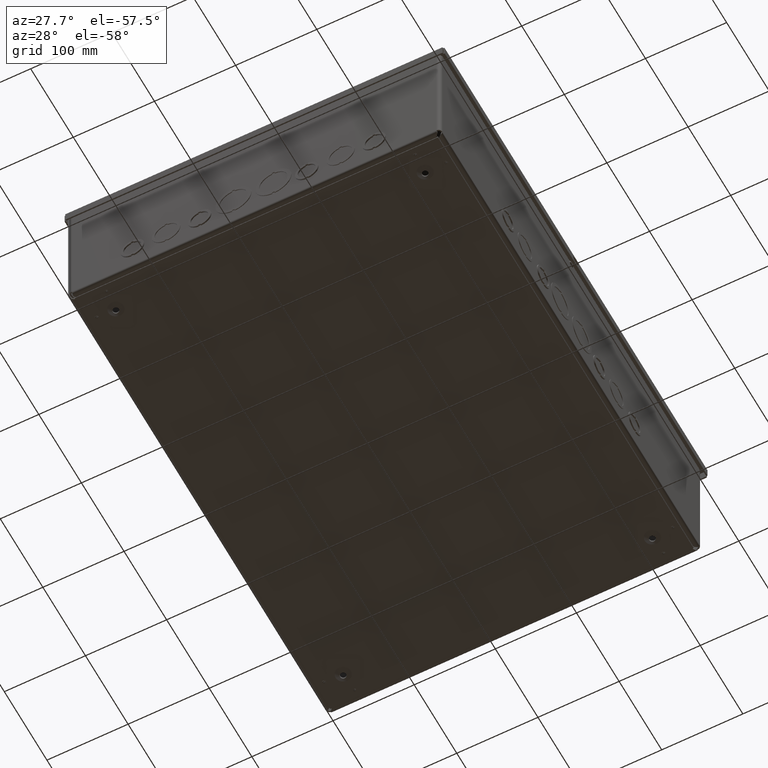
[diagram: clean part render]
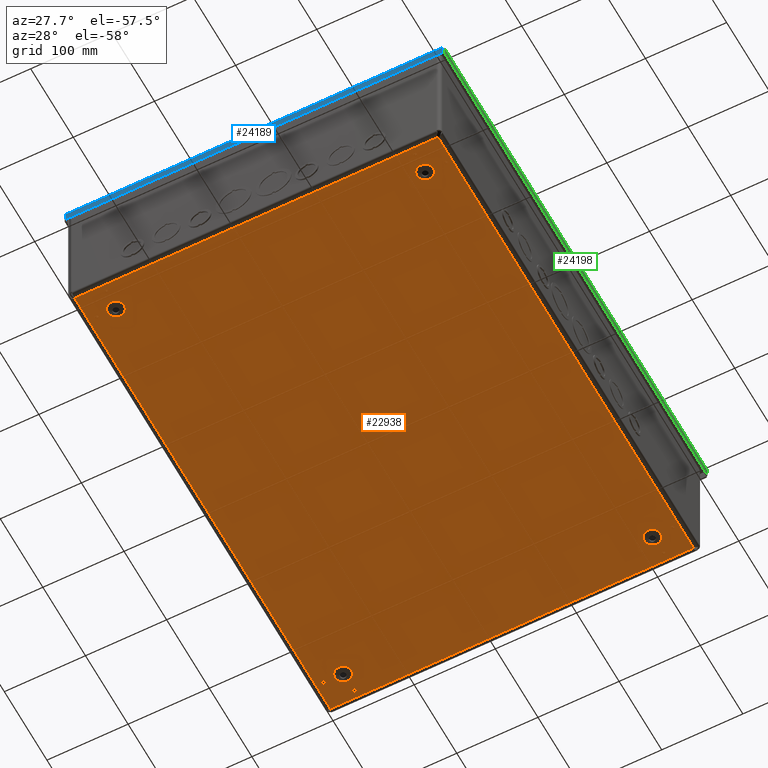
[diagram: same view with three faces highlighted in distinct colors, each labeled with its STEP entity id]
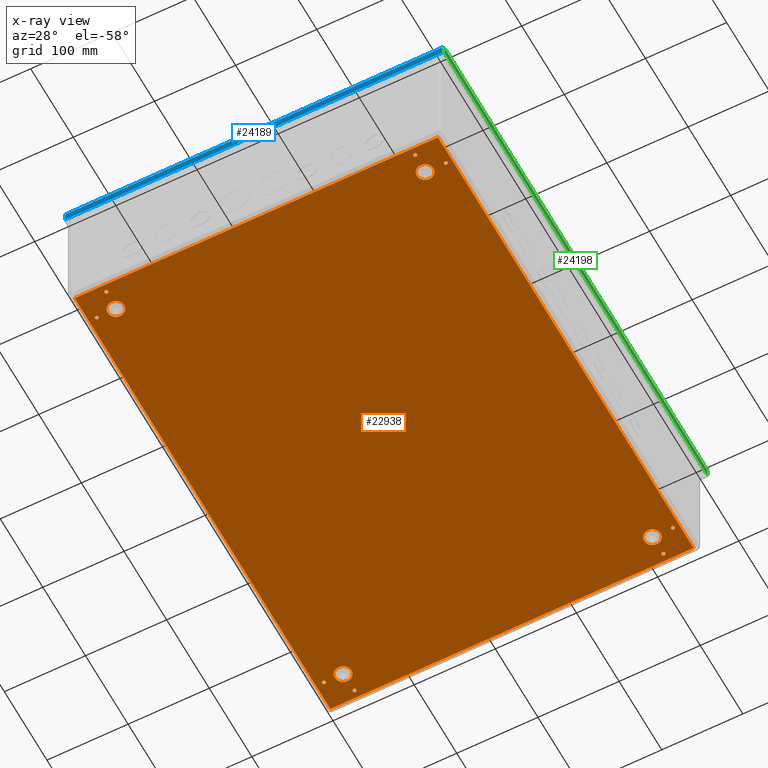
[diagram: x-ray of the same camera — body ghosted, the three highlighted faces saturated]
A machine part, auxiliary view with three faces highlighted in distinct colors.
The next image is the same camera in x-ray (body ghosted, the three faces saturated) — at least one of them is partly hidden behind the body in this view.
Their STEP definitions:

[orange] entity #22938 — the highlighted planar face has unit normal (0, 0, -1).
#304=LINE($,#32348,#2684);
#305=LINE($,#32350,#2685);
#306=LINE($,#32352,#2686);
#307=LINE($,#32353,#2687);
#2684=VECTOR($,#26274,23.625);
#2685=VECTOR($,#26275,17.625);
#2686=VECTOR($,#26276,23.625);
#2687=VECTOR($,#26277,17.625);
#5437=FACE_BOUND($,#7053,.T.);
#5438=FACE_BOUND($,#7054,.T.);
#5439=FACE_BOUND($,#7055,.T.);
#5440=FACE_BOUND($,#7056,.T.);
#5441=FACE_BOUND($,#7057,.T.);
#5442=FACE_BOUND($,#7058,.T.);
#5443=FACE_BOUND($,#7059,.T.);
#5444=FACE_BOUND($,#7060,.T.);
#5445=FACE_BOUND($,#7061,.T.);
#5446=FACE_BOUND($,#7062,.T.);
#5447=FACE_BOUND($,#7063,.T.);
#5448=FACE_BOUND($,#7064,.T.);
#5449=FACE_BOUND($,#7065,.T.);
#7053=EDGE_LOOP($,(#14243));
#7054=EDGE_LOOP($,(#14244));
#7055=EDGE_LOOP($,(#14245));
#7056=EDGE_LOOP($,(#14246));
#7057=EDGE_LOOP($,(#14247));
#7058=EDGE_LOOP($,(#14248));
#7059=EDGE_LOOP($,(#14249));
#7060=EDGE_LOOP($,(#14250));
#7061=EDGE_LOOP($,(#14251));
#7062=EDGE_LOOP($,(#14252));
#7063=EDGE_LOOP($,(#14253,#14254,#14255,#14256));
#7064=EDGE_LOOP($,(#14257));
#7065=EDGE_LOOP($,(#14258));
#8542=CIRCLE($,#24266,0.0898817580215499);
#8545=CIRCLE($,#24273,0.0898817580215499);
#8548=CIRCLE($,#24280,0.0898817580215491);
#8551=CIRCLE($,#24287,0.0898817580215491);
#8554=CIRCLE($,#24294,0.0898817580215491);
#8557=CIRCLE($,#24301,0.0898817580215491);
#8560=CIRCLE($,#24308,0.0898817580215499);
#8563=CIRCLE($,#24315,0.0898817580215499);
#8568=CIRCLE($,#24326,0.402000000000002);
#8569=CIRCLE($,#24329,0.402);
#8570=CIRCLE($,#24330,0.402);
#8571=CIRCLE($,#24331,0.402000000000002);
#9097=VERTEX_POINT($,#32252);
#9100=VERTEX_POINT($,#32262);
#9103=VERTEX_POINT($,#32272);
#9106=VERTEX_POINT($,#32282);
#9109=VERTEX_POINT($,#32292);
#9112=VERTEX_POINT($,#32302);
#9115=VERTEX_POINT($,#32312);
#9118=VERTEX_POINT($,#32322);
#9123=VERTEX_POINT($,#32338);
#9124=VERTEX_POINT($,#32342);
#9125=VERTEX_POINT($,#32344);
#9126=VERTEX_POINT($,#32346);
#9127=VERTEX_POINT($,#32347);
#9128=VERTEX_POINT($,#32349);
#9129=VERTEX_POINT($,#32351);
#9130=VERTEX_POINT($,#32354);
#11076=EDGE_CURVE($,#9097,#9097,#8542,.T.);
#11079=EDGE_CURVE($,#9100,#9100,#8545,.T.);
#11082=EDGE_CURVE($,#9103,#9103,#8548,.T.);
#11085=EDGE_CURVE($,#9106,#9106,#8551,.T.);
#11088=EDGE_CURVE($,#9109,#9109,#8554,.T.);
#11091=EDGE_CURVE($,#9112,#9112,#8557,.T.);
#11094=EDGE_CURVE($,#9115,#9115,#8560,.T.);
#11097=EDGE_CURVE($,#9118,#9118,#8563,.T.);
#11102=EDGE_CURVE($,#9123,#9123,#8568,.T.);
#11103=EDGE_CURVE($,#9124,#9124,#8569,.T.);
#11104=EDGE_CURVE($,#9125,#9125,#8570,.T.);
#11105=EDGE_CURVE($,#9126,#9127,#304,.T.);
#11106=EDGE_CURVE($,#9128,#9126,#305,.T.);
#11107=EDGE_CURVE($,#9129,#9128,#306,.T.);
#11108=EDGE_CURVE($,#9127,#9129,#307,.T.);
#11109=EDGE_CURVE($,#9130,#9130,#8571,.T.);
#14243=ORIENTED_EDGE($,*,*,#11076,.T.);
#14244=ORIENTED_EDGE($,*,*,#11079,.T.);
#14245=ORIENTED_EDGE($,*,*,#11082,.T.);
#14246=ORIENTED_EDGE($,*,*,#11085,.T.);
#14247=ORIENTED_EDGE($,*,*,#11088,.T.);
#14248=ORIENTED_EDGE($,*,*,#11091,.T.);
#14249=ORIENTED_EDGE($,*,*,#11094,.T.);
#14250=ORIENTED_EDGE($,*,*,#11097,.T.);
#14251=ORIENTED_EDGE($,*,*,#11103,.T.);
#14252=ORIENTED_EDGE($,*,*,#11104,.T.);
#14253=ORIENTED_EDGE($,*,*,#11105,.F.);
#14254=ORIENTED_EDGE($,*,*,#11106,.F.);
#14255=ORIENTED_EDGE($,*,*,#11107,.F.);
#14256=ORIENTED_EDGE($,*,*,#11108,.F.);
#14257=ORIENTED_EDGE($,*,*,#11109,.T.);
#14258=ORIENTED_EDGE($,*,*,#11102,.T.);
#20730=PLANE($,#24328);
#22938=ADVANCED_FACE($,(#5437,#5438,#5439,#5440,#5441,#5442,#5443,#5444,
#5445,#5446,#5447,#5448,#5449),#20730,.T.);
#24266=AXIS2_PLACEMENT_3D($,#32253,#26144,#26145);
#24273=AXIS2_PLACEMENT_3D($,#32263,#26158,#26159);
#24280=AXIS2_PLACEMENT_3D($,#32273,#26172,#26173);
#24287=AXIS2_PLACEMENT_3D($,#32283,#26186,#26187);
#24294=AXIS2_PLACEMENT_3D($,#32293,#26200,#26201);
#24301=AXIS2_PLACEMENT_3D($,#32303,#26214,#26215);
#24308=AXIS2_PLACEMENT_3D($,#32313,#26228,#26229);
#24315=AXIS2_PLACEMENT_3D($,#32323,#26242,#26243);
#24326=AXIS2_PLACEMENT_3D($,#32339,#26264,#26265);
#24328=AXIS2_PLACEMENT_3D($,#32341,#26268,#26269);
#24329=AXIS2_PLACEMENT_3D($,#32343,#26270,#26271);
#24330=AXIS2_PLACEMENT_3D($,#32345,#26272,#26273);
#24331=AXIS2_PLACEMENT_3D($,#32355,#26278,#26279);
#26144=DIRECTION('center_axis',(0.,0.,-1.));
#26145=DIRECTION('ref_axis',(-1.,6.00679994895151E-017,0.));
#26158=DIRECTION('center_axis',(0.,0.,-1.));
#26159=DIRECTION('ref_axis',(-1.,6.00679994895151E-017,0.));
#26172=DIRECTION('center_axis',(0.,0.,-1.));
#26173=DIRECTION('ref_axis',(-1.,6.00679994895162E-017,0.));
#26186=DIRECTION('center_axis',(0.,0.,-1.));
#26187=DIRECTION('ref_axis',(-1.,6.00679994895162E-017,0.));
#26200=DIRECTION('center_axis',(0.,0.,-1.));
#26201=DIRECTION('ref_axis',(-1.,6.00679994895162E-017,0.));
#26214=DIRECTION('center_axis',(0.,0.,-1.));
#26215=DIRECTION('ref_axis',(-1.,6.00679994895162E-017,0.));
#26228=DIRECTION('center_axis',(0.,0.,-1.));
#26229=DIRECTION('ref_axis',(-1.,6.00679994895151E-017,0.));
#26242=DIRECTION('center_axis',(0.,0.,-1.));
#26243=DIRECTION('ref_axis',(-1.,6.00679994895151E-017,0.));
#26264=DIRECTION('center_axis',(0.,0.,-1.));
#26265=DIRECTION('ref_axis',(-1.,-4.78144776769422E-016,-1.52679466533815E-016));
#26268=DIRECTION('center_axis',(0.,0.,1.));
#26269=DIRECTION('ref_axis',(1.,0.,0.));
#26270=DIRECTION('center_axis',(0.,0.,-1.));
#26271=DIRECTION('ref_axis',(-1.,-4.78144776769421E-016,-1.52679466533815E-016));
#26272=DIRECTION('center_axis',(0.,0.,-1.));
#26273=DIRECTION('ref_axis',(-1.,-1.48693002970667E-018,-1.52679466533815E-016));
#26274=DIRECTION($,(-3.06161699786838E-016,1.,0.));
#26275=DIRECTION($,(-1.,0.,0.));
#26276=DIRECTION($,(2.36817976339658E-016,-1.,0.));
#26277=DIRECTION($,(1.,1.58718430951047E-016,0.));
#26278=DIRECTION('center_axis',(0.,0.,-1.));
#26279=DIRECTION('ref_axis',(-1.,-1.48693002970667E-018,-1.52679466533815E-016));
#32252=CARTESIAN_POINT('',(0.469890453414107,1.32,0.0740000000000006));
#32253=CARTESIAN_POINT('Origin',(0.380008695392557,1.32,0.0740000000000006));
#32262=CARTESIAN_POINT('',(1.44489045341411,0.345,0.0740000000000007));
#32263=CARTESIAN_POINT('Origin',(1.35500869539256,0.345,0.0740000000000007));
#32272=CARTESIAN_POINT('',(16.4298904534141,0.345,0.0740000000000007));
#32273=CARTESIAN_POINT('Origin',(16.3400086953926,0.345,0.0740000000000007));
#32282=CARTESIAN_POINT('',(17.4048904534141,1.32,0.0740000000000006));
#32283=CARTESIAN_POINT('Origin',(17.3150086953925,1.32,0.0740000000000006));
#32292=CARTESIAN_POINT('',(17.4048904534141,22.305,0.0739999999999993));
#32293=CARTESIAN_POINT('Origin',(17.3150086953925,22.305,0.0739999999999993));
#32302=CARTESIAN_POINT('',(16.4298904534141,23.275,0.0739999999999993));
#32303=CARTESIAN_POINT('Origin',(16.3400086953926,23.275,0.0739999999999993));
#32312=CARTESIAN_POINT('',(0.469890453414102,22.305,0.0739999999999993));
#32313=CARTESIAN_POINT('Origin',(0.380008695392552,22.305,0.0739999999999993));
#32322=CARTESIAN_POINT('',(1.4448904534141,23.275,0.0739999999999993));
#32323=CARTESIAN_POINT('Origin',(1.35500869539255,23.275,0.0739999999999993));
#32338=CARTESIAN_POINT('',(15.9105,1.3125,0.074));
#32339=CARTESIAN_POINT('Origin',(16.3125,1.3125,0.0740000000000018));
#32341=CARTESIAN_POINT('Origin',(8.8125,11.8125,0.074));
#32342=CARTESIAN_POINT('',(0.910499999999992,1.3125,0.074));
#32343=CARTESIAN_POINT('Origin',(1.31249999999999,1.3125,0.0739999999999995));
#32344=CARTESIAN_POINT('',(0.910499999999993,22.3125,0.074));
#32345=CARTESIAN_POINT('Origin',(1.31249999999999,22.3125,0.0739999999999982));
#32346=CARTESIAN_POINT('',(0.,0.,0.074));
#32347=CARTESIAN_POINT('',(-7.23307015746405E-015,23.625,0.074));
#32348=CARTESIAN_POINT($,(-7.23307015746405E-015,23.625,0.074));
#32349=CARTESIAN_POINT('',(17.625,0.,0.074));
#32350=CARTESIAN_POINT($,(0.,0.,0.074));
#32351=CARTESIAN_POINT('',(17.625,23.625,0.074));
#32352=CARTESIAN_POINT($,(17.625,0.,0.074));
#32353=CARTESIAN_POINT($,(17.625,23.625,0.074));
#32354=CARTESIAN_POINT('',(15.9105,22.3125,0.074));
#32355=CARTESIAN_POINT('Origin',(16.3125,22.3125,0.0740000000000005));

[blue] entity #24189 — the highlighted planar face has unit normal (-0, -1, -0).
#2638=LINE($,#40124,#5018);
#2644=LINE($,#40152,#5024);
#2649=LINE($,#40213,#5029);
#2651=LINE($,#40216,#5031);
#5018=VECTOR($,#31992,18.2904029130879);
#5024=VECTOR($,#32002,0.40675);
#5029=VECTOR($,#32009,0.40675);
#5031=VECTOR($,#32013,18.2904029130879);
#6938=FACE_OUTER_BOUND($,#8486,.T.);
#8486=EDGE_LOOP($,(#20579,#20580,#20581,#20582));
#11002=VERTEX_POINT($,#40122);
#11003=VERTEX_POINT($,#40123);
#11009=VERTEX_POINT($,#40151);
#11010=VERTEX_POINT($,#40212);
#14068=EDGE_CURVE($,#11002,#11003,#2638,.T.);
#14076=EDGE_CURVE($,#11009,#11003,#2644,.T.);
#14083=EDGE_CURVE($,#11002,#11010,#2649,.T.);
#14085=EDGE_CURVE($,#11010,#11009,#2651,.T.);
#20579=ORIENTED_EDGE($,*,*,#14068,.T.);
#20580=ORIENTED_EDGE($,*,*,#14076,.F.);
#20581=ORIENTED_EDGE($,*,*,#14085,.F.);
#20582=ORIENTED_EDGE($,*,*,#14083,.F.);
#21613=PLANE($,#26027);
#24189=ADVANCED_FACE($,(#6938),#21613,.T.);
#26027=AXIS2_PLACEMENT_3D($,#40217,#32014,#32015);
#31992=DIRECTION($,(-1.,-1.53202750440766E-016,-4.31859241248338E-034));
#32002=DIRECTION($,(-8.38164711797325E-031,5.39030285815812E-015,1.));
#32009=DIRECTION($,(8.38164711797325E-031,-5.39030285815812E-015,-1.));
#32013=DIRECTION($,(-1.,-1.53282868247245E-016,-1.52605674373157E-016));
#32014=DIRECTION('center_axis',(1.53202750440766E-016,-1.,5.38603652528274E-015));
#32015=DIRECTION('ref_axis',(1.,0.,-1.40998324127395E-016));
#40122=CARTESIAN_POINT('',(9.14520145654396,-12.21825,-0.0312499999999995));
#40123=CARTESIAN_POINT('',(-9.14520145654396,-12.21825,-0.0312499999999995));
#40124=CARTESIAN_POINT($,(9.13949731137649E-016,-12.21825,-0.0312499999999982));
#40151=CARTESIAN_POINT('',(-9.14520145654396,-12.21825,-0.438));
#40152=CARTESIAN_POINT($,(-9.14520145654396,-12.21825,-0.0312499999999995));
#40212=CARTESIAN_POINT('',(9.14520145654396,-12.21825,-0.438));
#40213=CARTESIAN_POINT($,(9.14520145654396,-12.21825,-0.0312499999999995));
#40216=CARTESIAN_POINT($,(9.14520145654396,-12.21825,-0.438));
#40217=CARTESIAN_POINT('Origin',(4.1490362099643E-016,-12.21825,-0.200421034701825));

[green] entity #24198 — the highlighted planar face has unit normal (1, -0, 0).
#2547=LINE($,#39710,#4927);
#2551=LINE($,#39721,#4931);
#2652=LINE($,#40222,#5032);
#2658=LINE($,#40250,#5038);
#2663=LINE($,#40311,#5043);
#2665=LINE($,#40314,#5045);
#4927=VECTOR($,#31705,0.250000000000002);
#4931=VECTOR($,#31717,0.250000000000002);
#5032=VECTOR($,#32020,24.2904029130879);
#5038=VECTOR($,#32030,0.40675);
#5043=VECTOR($,#32037,0.40675);
#5045=VECTOR($,#32041,24.2904029130879);
#5699=FACE_BOUND($,#8496,.T.);
#5700=FACE_BOUND($,#8497,.T.);
#8496=EDGE_LOOP($,(#20619,#20620,#20621,#20622));
#8497=EDGE_LOOP($,(#20623,#20624,#20625,#20626));
#9017=CIRCLE($,#25922,0.125);
#9019=CIRCLE($,#25926,0.125);
#10912=VERTEX_POINT($,#39700);
#10913=VERTEX_POINT($,#39701);
#10916=VERTEX_POINT($,#39709);
#10918=VERTEX_POINT($,#39715);
#11011=VERTEX_POINT($,#40220);
#11012=VERTEX_POINT($,#40221);
#11018=VERTEX_POINT($,#40249);
#11019=VERTEX_POINT($,#40310);
#13921=EDGE_CURVE($,#10912,#10913,#9017,.T.);
#13925=EDGE_CURVE($,#10916,#10912,#2547,.T.);
#13928=EDGE_CURVE($,#10918,#10916,#9019,.T.);
#13931=EDGE_CURVE($,#10913,#10918,#2551,.T.);
#14086=EDGE_CURVE($,#11011,#11012,#2652,.T.);
#14094=EDGE_CURVE($,#11018,#11012,#2658,.T.);
#14101=EDGE_CURVE($,#11011,#11019,#2663,.T.);
#14103=EDGE_CURVE($,#11019,#11018,#2665,.T.);
#20619=ORIENTED_EDGE($,*,*,#13921,.T.);
#20620=ORIENTED_EDGE($,*,*,#13931,.T.);
#20621=ORIENTED_EDGE($,*,*,#13928,.T.);
#20622=ORIENTED_EDGE($,*,*,#13925,.T.);
#20623=ORIENTED_EDGE($,*,*,#14086,.T.);
#20624=ORIENTED_EDGE($,*,*,#14094,.F.);
#20625=ORIENTED_EDGE($,*,*,#14103,.F.);
#20626=ORIENTED_EDGE($,*,*,#14101,.F.);
#21618=PLANE($,#26034);
#24198=ADVANCED_FACE($,(#5699,#5700),#21618,.T.);
#25922=AXIS2_PLACEMENT_3D($,#39702,#31697,#31698);
#25926=AXIS2_PLACEMENT_3D($,#39716,#31710,#31711);
#26034=AXIS2_PLACEMENT_3D($,#40315,#32042,#32043);
#31697=DIRECTION('center_axis',(-1.,-1.15478553624652E-016,-5.3841117816165E-015));
#31698=DIRECTION('ref_axis',(-5.46369598732854E-015,-6.20063027418799E-031,
1.));
#31705=DIRECTION($,(1.15478553624652E-016,-1.,1.68641367572393E-033));
#31710=DIRECTION('center_axis',(-1.,-1.15478553624652E-016,-5.3841117816165E-015));
#31711=DIRECTION('ref_axis',(5.46369598732854E-015,2.23792987640976E-014,
-1.));
#31717=DIRECTION($,(-1.15478553624652E-016,1.,-1.68641367572393E-033));
#32020=DIRECTION($,(1.15478553624652E-016,-1.,6.54078217227801E-034));
#32030=DIRECTION($,(-5.39030285815812E-015,-6.16297582203915E-031,1.));
#32037=DIRECTION($,(5.39030285815812E-015,6.16297582203915E-031,-1.));
#32041=DIRECTION($,(1.15357210124215E-016,-1.,1.91876905104871E-019));
#32042=DIRECTION('center_axis',(1.,1.15478553624652E-016,5.3841117816165E-015));
#32043=DIRECTION('ref_axis',(4.51194637207664E-015,-1.15357210124214E-016,
-1.));
#39700=CARTESIAN_POINT('',(9.21825,-0.125000000000001,-0.313));
#39701=CARTESIAN_POINT('',(9.21825,-0.125000000000001,-0.0629999999999999));
#39702=CARTESIAN_POINT('Origin',(9.21825,-0.125000000000001,-0.188));
#39709=CARTESIAN_POINT('',(9.21825,0.125000000000001,-0.313));
#39710=CARTESIAN_POINT($,(9.21825,0.0625000000000008,-0.313));
#39715=CARTESIAN_POINT('',(9.21825,0.125000000000001,-0.0629999999999999));
#39716=CARTESIAN_POINT('Origin',(9.21825,0.124999999999998,-0.188));
#39721=CARTESIAN_POINT($,(9.21825,-0.0625000000000002,-0.0629999999999999));
#40220=CARTESIAN_POINT('',(9.21825,12.145201456544,-0.0312499999999995));
#40221=CARTESIAN_POINT('',(9.21825,-12.145201456544,-0.0312499999999995));
#40222=CARTESIAN_POINT($,(9.21825,1.05699107249262E-015,-0.0312499999999995));
#40249=CARTESIAN_POINT('',(9.21825,-12.145201456544,-0.438));
#40250=CARTESIAN_POINT($,(9.21825,-12.145201456544,-0.0312499999999995));
#40310=CARTESIAN_POINT('',(9.21825,12.145201456544,-0.438));
#40311=CARTESIAN_POINT($,(9.21825,12.145201456544,-0.0312499999999995));
#40314=CARTESIAN_POINT($,(9.21825,12.145201456544,-0.438));
#40315=CARTESIAN_POINT('Origin',(9.21825,7.04512916317317E-016,-0.200366547356989));